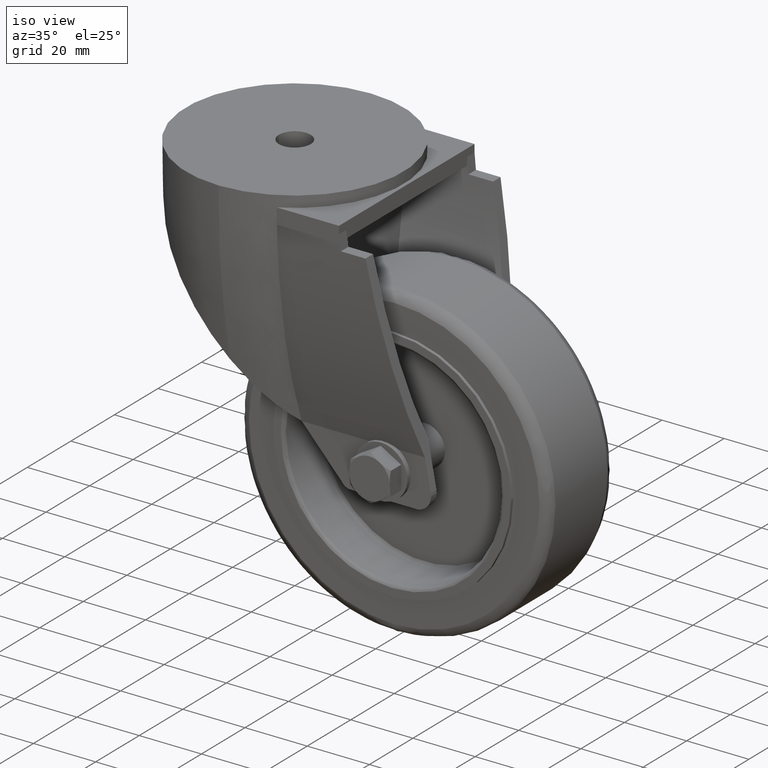
[diagram: clean part render]
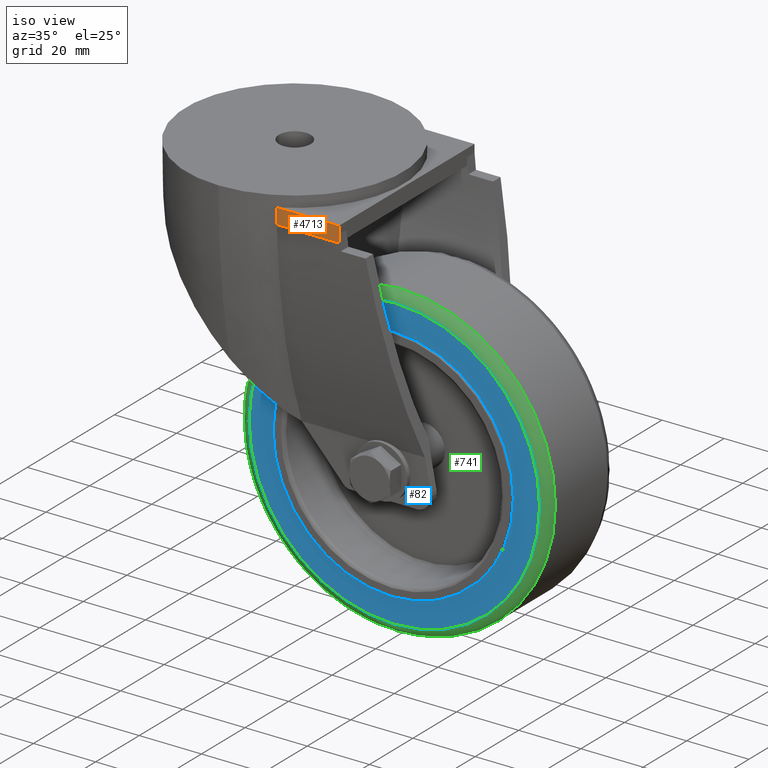
[diagram: same view with three faces highlighted in distinct colors, each labeled with its STEP entity id]
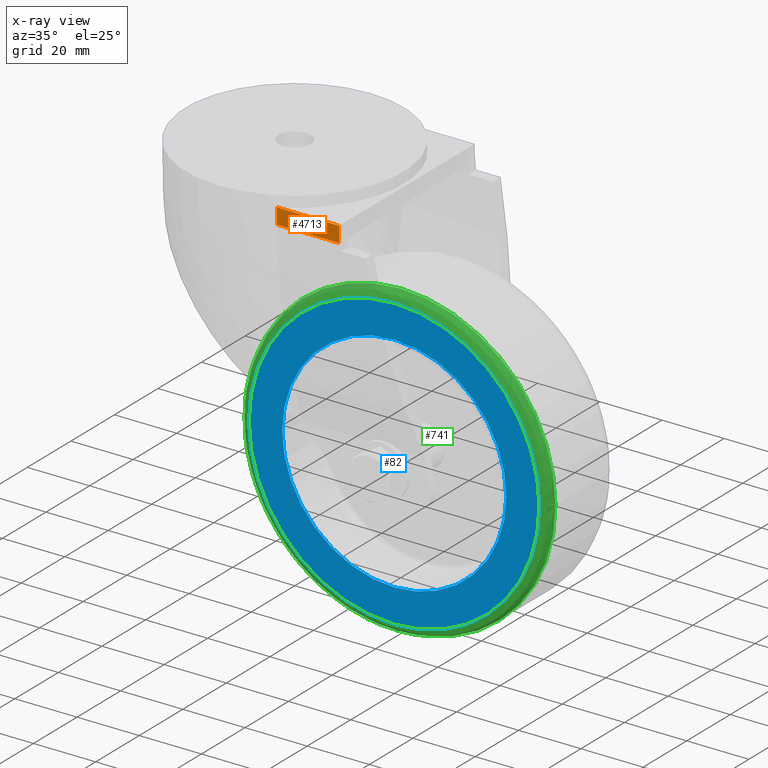
[diagram: x-ray of the same camera — body ghosted, the three highlighted faces saturated]
A machine part, iso view with three faces highlighted in distinct colors.
The next image is the same camera in x-ray (body ghosted, the three faces saturated) — at least one of them is partly hidden behind the body in this view.
Their STEP definitions:

[orange] entity #4713 — the highlighted planar face has unit normal (0, -1, 0).
#3352=CARTESIAN_POINT('',(15.998477758083510,-31.127938871916683,-9.075096515550406));
#3353=VERTEX_POINT('',#3352);
#3367=CARTESIAN_POINT('',(16.040846332414759,-31.127938871916626,-6.575096515550121));
#3368=VERTEX_POINT('',#3367);
#3369=CARTESIAN_POINT('',(16.040846332414759,-31.127938871916626,-6.575096515550121));
#3370=CARTESIAN_POINT('',(16.039372789405519,-31.127938871916626,-6.845565510957051));
#3371=CARTESIAN_POINT('',(16.031725893920054,-31.127938871916683,-7.679007092286219));
#3372=CARTESIAN_POINT('',(16.014500648517469,-31.127938871916626,-8.512332493921640));
#3373=CARTESIAN_POINT('',(15.998477758083510,-31.127938871916626,-9.075096515550406));
#3374=B_SPLINE_CURVE_WITH_KNOTS('',3,(#3369,#3370,#3371,#3372,#3373),.UNSPECIFIED.,.F.,.U.,(4,1,4),(0.0,0.811420776332713,2.500412914366193),.UNSPECIFIED.);
#3375=EDGE_CURVE('',#3368,#3353,#3374,.T.);
#3617=CARTESIAN_POINT('',(35.999990870986210,-31.127938871916626,-9.075096515550406));
#3618=VERTEX_POINT('',#3617);
#4509=CARTESIAN_POINT('',(15.998477758083482,-31.127938871916683,-11.575096515550122));
#4510=VERTEX_POINT('',#4509);
#4511=CARTESIAN_POINT('',(15.998477758083482,-31.127938871916683,-11.575096515550122));
#4512=DIRECTION('',(0.0,0.0,1.0));
#4513=VECTOR('',#4512,2.499999999999716);
#4514=LINE('',#4511,#4513);
#4515=EDGE_CURVE('',#4510,#3353,#4514,.T.);
#4551=CARTESIAN_POINT('',(35.999990870986210,-31.127938871916626,-6.575096515550121));
#4552=VERTEX_POINT('',#4551);
#4553=CARTESIAN_POINT('',(35.999990870986210,-31.127938871916626,-9.075096515550406));
#4554=DIRECTION('',(0.0,0.0,1.0));
#4555=VECTOR('',#4554,2.500000000000284);
#4556=LINE('',#4553,#4555);
#4557=EDGE_CURVE('',#3618,#4552,#4556,.T.);
#4591=CARTESIAN_POINT('',(35.999990870986210,-31.127938871916626,-11.575096515550122));
#4592=VERTEX_POINT('',#4591);
#4600=CARTESIAN_POINT('',(35.999990870986210,-31.127938871916626,-11.575096515550122));
#4601=DIRECTION('',(0.0,0.0,1.0));
#4602=VECTOR('',#4601,2.499999999999716);
#4603=LINE('',#4600,#4602);
#4604=EDGE_CURVE('',#4592,#3618,#4603,.T.);
#4640=CARTESIAN_POINT('',(15.998477758083482,-31.127938871916683,-11.575096515550122));
#4641=DIRECTION('',(1.0,0.0,0.0));
#4642=VECTOR('',#4641,20.001513112902728);
#4643=LINE('',#4640,#4642);
#4644=EDGE_CURVE('',#4510,#4592,#4643,.T.);
#4691=CARTESIAN_POINT('',(16.040846332414741,-31.127938871916683,-6.575096515550121));
#4692=DIRECTION('',(1.0,0.0,0.0));
#4693=VECTOR('',#4692,19.959144538571469);
#4694=LINE('',#4691,#4693);
#4695=EDGE_CURVE('',#3368,#4552,#4694,.T.);
#4700=CARTESIAN_POINT('',(15.998477758083482,-31.127938871916683,-11.575096515550122));
#4701=DIRECTION('',(0.0,-1.0,0.0));
#4702=DIRECTION('',(1.0,0.0,0.0));
#4703=AXIS2_PLACEMENT_3D('',#4700,#4701,#4702);
#4704=PLANE('',#4703);
#4705=ORIENTED_EDGE('',*,*,#4644,.T.);
#4706=ORIENTED_EDGE('',*,*,#4604,.T.);
#4707=ORIENTED_EDGE('',*,*,#4557,.T.);
#4708=ORIENTED_EDGE('',*,*,#4695,.F.);
#4709=ORIENTED_EDGE('',*,*,#3375,.T.);
#4710=ORIENTED_EDGE('',*,*,#4515,.F.);
#4711=EDGE_LOOP('',(#4705,#4706,#4707,#4708,#4709,#4710));
#4712=FACE_OUTER_BOUND('',#4711,.T.);
#4713=ADVANCED_FACE('',(#4712),#4704,.T.);

[blue] entity #82 — the highlighted planar face has unit normal (0, -1, 0).
#25=CARTESIAN_POINT('',(42.499989609830635,-14.999999999939973,-116.075077357231750));
#26=VERTEX_POINT('',#25);
#33=CARTESIAN_POINT('',(42.499989609830635,-14.999999999939972,-44.075077357231756));
#34=VERTEX_POINT('',#33);
#35=CARTESIAN_POINT('',(42.499989609830635,-14.999999999939973,-80.075077357231748));
#36=DIRECTION('',(-3.157968E-016,1.0,-6.123234E-017));
#37=DIRECTION('',(0.0,-6.123234E-017,-1.0));
#38=AXIS2_PLACEMENT_3D('',#35,#36,#37);
#39=CIRCLE('',#38,35.999999999999993);
#40=EDGE_CURVE('',#34,#26,#39,.T.);
#42=CARTESIAN_POINT('',(42.499989609830635,-14.999999999939973,-80.075077357231748));
#43=DIRECTION('',(-3.157968E-016,1.0,-6.123234E-017));
#44=DIRECTION('',(0.0,-6.123234E-017,-1.0));
#45=AXIS2_PLACEMENT_3D('',#42,#43,#44);
#46=CIRCLE('',#45,35.999999999999993);
#47=EDGE_CURVE('',#26,#34,#46,.T.);
#53=CARTESIAN_POINT('',(-17.140061405798505,-14.999999999939973,-20.435026341594842));
#54=DIRECTION('',(0.0,-1.0,0.0));
#55=DIRECTION('',(0.0,0.0,-1.0));
#56=AXIS2_PLACEMENT_3D('',#53,#54,#55);
#57=PLANE('',#56);
#58=CARTESIAN_POINT('',(42.499989609830635,-14.999999999939973,-126.775115933133120));
#59=VERTEX_POINT('',#58);
#60=CARTESIAN_POINT('',(42.499989609830635,-14.999999999939972,-33.375038781330367));
#61=VERTEX_POINT('',#60);
#62=CARTESIAN_POINT('',(42.499989609830635,-14.999999999939973,-80.075077357231748));
#63=DIRECTION('',(3.157968E-016,-1.0,6.123234E-017));
#64=DIRECTION('',(0.0,-6.123234E-017,-1.0));
#65=AXIS2_PLACEMENT_3D('',#62,#63,#64);
#66=CIRCLE('',#65,46.700038575901381);
#67=EDGE_CURVE('',#59,#61,#66,.T.);
#68=ORIENTED_EDGE('',*,*,#67,.T.);
#69=CARTESIAN_POINT('',(42.499989609830635,-14.999999999939973,-80.075077357231748));
#70=DIRECTION('',(3.157968E-016,-1.0,6.123234E-017));
#71=DIRECTION('',(0.0,-6.123234E-017,-1.0));
#72=AXIS2_PLACEMENT_3D('',#69,#70,#71);
#73=CIRCLE('',#72,46.700038575901381);
#74=EDGE_CURVE('',#61,#59,#73,.T.);
#75=ORIENTED_EDGE('',*,*,#74,.T.);
#76=EDGE_LOOP('',(#68,#75));
#77=FACE_OUTER_BOUND('',#76,.T.);
#78=ORIENTED_EDGE('',*,*,#47,.T.);
#79=ORIENTED_EDGE('',*,*,#40,.T.);
#80=EDGE_LOOP('',(#78,#79));
#81=FACE_BOUND('',#80,.T.);
#82=ADVANCED_FACE('',(#77,#81),#57,.T.);

[green] entity #741 — the highlighted face is a freeform B-spline surface patch.
#58=CARTESIAN_POINT('',(42.499989609830635,-14.999999999939973,-126.775115933133120));
#59=VERTEX_POINT('',#58);
#60=CARTESIAN_POINT('',(42.499989609830635,-14.999999999939972,-33.375038781330367));
#61=VERTEX_POINT('',#60);
#62=CARTESIAN_POINT('',(42.499989609830635,-14.999999999939973,-80.075077357231748));
#63=DIRECTION('',(3.157968E-016,-1.0,6.123234E-017));
#64=DIRECTION('',(0.0,-6.123234E-017,-1.0));
#65=AXIS2_PLACEMENT_3D('',#62,#63,#64);
#66=CIRCLE('',#65,46.700038575901381);
#67=EDGE_CURVE('',#59,#61,#66,.T.);
#69=CARTESIAN_POINT('',(42.499989609830635,-14.999999999939973,-80.075077357231748));
#70=DIRECTION('',(3.157968E-016,-1.0,6.123234E-017));
#71=DIRECTION('',(0.0,-6.123234E-017,-1.0));
#72=AXIS2_PLACEMENT_3D('',#69,#70,#71);
#73=CIRCLE('',#72,46.700038575901381);
#74=EDGE_CURVE('',#61,#59,#73,.T.);
#106=CARTESIAN_POINT('',(42.499989609830635,-11.999999999939973,-129.775115933133120));
#107=VERTEX_POINT('',#106);
#114=CARTESIAN_POINT('',(42.499989609830635,-11.999999999939970,-30.375038781330367));
#115=VERTEX_POINT('',#114);
#116=CARTESIAN_POINT('',(42.499989609830635,-11.999999999939973,-80.075077357231748));
#117=DIRECTION('',(3.157968E-016,-1.0,6.123234E-017));
#118=DIRECTION('',(0.0,-6.123234E-017,-1.0));
#119=AXIS2_PLACEMENT_3D('',#116,#117,#118);
#120=CIRCLE('',#119,49.700038575901381);
#121=EDGE_CURVE('',#115,#107,#120,.T.);
#123=CARTESIAN_POINT('',(42.499989609830635,-11.999999999939973,-80.075077357231748));
#124=DIRECTION('',(3.157968E-016,-1.0,6.123234E-017));
#125=DIRECTION('',(0.0,-6.123234E-017,-1.0));
#126=AXIS2_PLACEMENT_3D('',#123,#124,#125);
#127=CIRCLE('',#126,49.700038575901381);
#128=EDGE_CURVE('',#107,#115,#127,.T.);
#453=CARTESIAN_POINT('',(42.499989609830635,-11.999999999939977,-129.775115933133120));
#454=CARTESIAN_POINT('',(42.499989609830635,-12.390180643972233,-129.775115933133120));
#455=CARTESIAN_POINT('',(42.499989609830628,-13.179083451969806,-129.618999604785810));
#456=CARTESIAN_POINT('',(42.499989609830642,-14.176238734358815,-128.951354667551950));
#457=CARTESIAN_POINT('',(42.499989609830628,-14.843883671592637,-127.954199385162950));
#458=CARTESIAN_POINT('',(42.499989609830635,-14.999999999939977,-127.165296577165380));
#459=CARTESIAN_POINT('',(42.499989609830635,-14.999999999939977,-126.775115933133120));
#460=CARTESIAN_POINT('',(45.747626713483101,-11.999999999939975,-129.775115933133120));
#461=CARTESIAN_POINT('',(45.747626713483101,-12.390180643972231,-129.775115933133120));
#462=CARTESIAN_POINT('',(45.737425329440860,-13.179083451969804,-129.618999604785840));
#463=CARTESIAN_POINT('',(45.693798231105426,-14.176238734358813,-128.951354667551950));
#464=CARTESIAN_POINT('',(45.628639358275883,-14.843883671592636,-127.954199385162950));
#465=CARTESIAN_POINT('',(45.577088693450641,-14.999999999939975,-127.165296577165380));
#466=CARTESIAN_POINT('',(45.551592432823981,-14.999999999939975,-126.775115933133120));
#467=CARTESIAN_POINT('',(52.259826415908400,-11.999999999939973,-129.134991146755060));
#468=CARTESIAN_POINT('',(52.259826415908400,-12.390180643972226,-129.134991146755060));
#469=CARTESIAN_POINT('',(52.229169097904361,-13.179083451969788,-128.980885559932230));
#470=CARTESIAN_POINT('',(52.098060434440157,-14.176238734358801,-128.321839732177410));
#471=CARTESIAN_POINT('',(51.902244231771164,-14.843883671592629,-127.337527574872720));
#472=CARTESIAN_POINT('',(51.747323574111036,-14.999999999939970,-126.558785649158350));
#473=CARTESIAN_POINT('',(51.670701915058828,-14.999999999939975,-126.173630439885630));
#474=CARTESIAN_POINT('',(60.082761094800418,-11.999999999939964,-126.760024867695220));
#475=CARTESIAN_POINT('',(60.082761094800418,-12.390180643972222,-126.760024867695220));
#476=CARTESIAN_POINT('',(60.027530599914321,-13.179083451969797,-126.613379456479110));
#477=CARTESIAN_POINT('',(59.791332627018413,-14.176238734358813,-125.986237712860730));
#478=CARTESIAN_POINT('',(59.438561201328206,-14.843883671592636,-125.049575622608670));
#479=CARTESIAN_POINT('',(59.159464882807498,-14.999999999939968,-124.308532210218220));
#480=CARTESIAN_POINT('',(59.021427623713599,-14.999999999939963,-123.942022175051420));
#481=CARTESIAN_POINT('',(65.965853382629206,-11.999999999939970,-123.977099329290790));
#482=CARTESIAN_POINT('',(65.965853382629206,-12.390180643972224,-123.977099329290790));
#483=CARTESIAN_POINT('',(65.892143087855231,-13.179083451969801,-123.839195563545500));
#484=CARTESIAN_POINT('',(65.576914657563307,-14.176238734358803,-123.249438220415730));
#485=CARTESIAN_POINT('',(65.106107980398875,-14.843883671592637,-122.368611275983000));
#486=CARTESIAN_POINT('',(64.733627669459480,-14.999999999939970,-121.671742029943400));
#487=CARTESIAN_POINT('',(64.549403952496775,-14.999999999939973,-121.327079939164220));
#488=CARTESIAN_POINT('',(70.156265007863624,-11.999999999939966,-121.465640681328580));
#489=CARTESIAN_POINT('',(70.156265007863624,-12.390180643972224,-121.465640681328580));
#490=CARTESIAN_POINT('',(70.069391912899903,-13.179083451969790,-121.335625837084180));
#491=CARTESIAN_POINT('',(69.697871632809182,-14.176238734358812,-120.779606146870360));
#492=CARTESIAN_POINT('',(69.142990753547096,-14.843883671592627,-119.949167780174750));
#493=CARTESIAN_POINT('',(68.703994850416336,-14.999999999939964,-119.292163629541860));
#494=CARTESIAN_POINT('',(68.486873422434769,-14.999999999939964,-118.967218275022900));
#495=CARTESIAN_POINT('',(74.080196321080550,-11.999999999939966,-118.555232925542880));
#496=CARTESIAN_POINT('',(74.080196321080550,-12.390180643972220,-118.555232925542880));
#497=CARTESIAN_POINT('',(73.980997486200778,-13.179083451969790,-118.434360170235410));
#498=CARTESIAN_POINT('',(73.556765116735619,-14.176238734358805,-117.917437411515240));
#499=CARTESIAN_POINT('',(72.923156555386740,-14.843883671592629,-117.145391926409730));
#500=CARTESIAN_POINT('',(72.421874977635042,-14.999999999939970,-116.534585503520090));
#501=CARTESIAN_POINT('',(72.173947898575548,-14.999999999939970,-116.232488919446500));
#502=CARTESIAN_POINT('',(78.902510515932264,-11.999999999939963,-114.185273008425270));
#503=CARTESIAN_POINT('',(78.902510515932264,-12.390180643972220,-114.185273008425270));
#504=CARTESIAN_POINT('',(78.788163966728462,-13.179083451969785,-114.078127045225530));
#505=CARTESIAN_POINT('',(78.299151091046539,-14.176238734358794,-113.619908096365170));
#506=CARTESIAN_POINT('',(77.568790168723339,-14.843883671592620,-112.935539175303550));
#507=CARTESIAN_POINT('',(76.990962630075515,-14.999999999939961,-112.394098365565000));
#508=CARTESIAN_POINT('',(76.705176955485953,-14.999999999939961,-112.126309074276560));
#509=CARTESIAN_POINT('',(84.091389668849402,-11.999999999939963,-107.864177520596770));
#510=CARTESIAN_POINT('',(84.091389668849402,-12.390180643972213,-107.864177520596770));
#511=CARTESIAN_POINT('',(83.960743962043281,-13.179083451969788,-107.776887200309550));
#512=CARTESIAN_POINT('',(83.402026333696540,-14.176238734358790,-107.403582620152700));
#513=CARTESIAN_POINT('',(82.567558484995175,-14.843883671592618,-106.846036815064020));
#514=CARTESIAN_POINT('',(81.907366395908596,-14.999999999939959,-106.404932546762080));
#515=CARTESIAN_POINT('',(81.580844330207441,-14.999999999939963,-106.186768349922260));
#516=CARTESIAN_POINT('',(88.712573632369725,-11.999999999939952,-99.217263162531026));
#517=CARTESIAN_POINT('',(88.712573632369725,-12.390180643972213,-99.217263162531026));
#518=CARTESIAN_POINT('',(88.567411995723830,-13.179083451969785,-99.157134280339037));
#519=CARTESIAN_POINT('',(87.946615741974000,-14.176238734358805,-98.899987931831106));
#520=CARTESIAN_POINT('',(87.019430902860705,-14.843883671592629,-98.515929242156744));
#521=CARTESIAN_POINT('',(86.285885450083484,-14.999999999939957,-98.212079897855915));
#522=CARTESIAN_POINT('',(85.923083804189929,-14.999999999939957,-98.061800127463187));
#523=CARTESIAN_POINT('',(91.559343892435606,-11.999999999939964,-89.833522078089459));
#524=CARTESIAN_POINT('',(91.559343892435606,-12.390180643972217,-89.833522078089459));
#525=CARTESIAN_POINT('',(91.405240063119749,-13.179083451969788,-89.802869132863393));
#526=CARTESIAN_POINT('',(90.746201751495136,-14.176238734358799,-89.671779169961127));
#527=CARTESIAN_POINT('',(89.761900819841259,-14.843883671592620,-89.475990897353540));
#528=CARTESIAN_POINT('',(88.983167775338927,-14.999999999939963,-89.321092336656946));
#529=CARTESIAN_POINT('',(88.598016958593405,-14.999999999939963,-89.244481606463580));
#530=CARTESIAN_POINT('',(92.520386081172504,-11.999999999939952,-80.075091848421238));
#531=CARTESIAN_POINT('',(92.520386081172504,-12.390180643972210,-80.075091848421238));
#532=CARTESIAN_POINT('',(92.363263453839778,-13.179083451969779,-80.075091802901909));
#533=CARTESIAN_POINT('',(91.691314992240152,-14.176238734358796,-80.075091608234686));
#534=CARTESIAN_POINT('',(90.687732218508089,-14.843883671592620,-80.075091317491086));
#535=CARTESIAN_POINT('',(89.893744278777874,-14.999999999939952,-80.075091087468337));
#536=CARTESIAN_POINT('',(89.501048597463011,-14.999999999939952,-80.075090973702217));
#537=CARTESIAN_POINT('',(91.559280897266348,-11.999999999939961,-70.316574671616124));
#538=CARTESIAN_POINT('',(91.559280897266348,-12.390180643972215,-70.316574671616124));
#539=CARTESIAN_POINT('',(91.405177265829096,-13.179083451969786,-70.347227798919391));
#540=CARTESIAN_POINT('',(90.746139800449413,-14.176238734358805,-70.478318540490633));
#541=CARTESIAN_POINT('',(89.761840132697273,-14.843883671592623,-70.674107976072463));
#542=CARTESIAN_POINT('',(88.983108088135140,-14.999999999939963,-70.829007456860126));
#543=CARTESIAN_POINT('',(88.597957765946489,-14.999999999939963,-70.905618642118014));
#544=CARTESIAN_POINT('',(88.712825613046817,-11.999999999939957,-60.933094428585335));
#545=CARTESIAN_POINT('',(88.712825613046817,-12.390180643972215,-60.933094428585335));
#546=CARTESIAN_POINT('',(88.567663184886499,-13.179083451969786,-60.993222673507013));
#547=CARTESIAN_POINT('',(87.946863546156919,-14.176238734358792,-61.250366296673626));
#548=CARTESIAN_POINT('',(87.019673651436676,-14.843883671592627,-61.634420915938129));
#549=CARTESIAN_POINT('',(86.286124198898676,-14.999999999939959,-61.938267039920269));
#550=CARTESIAN_POINT('',(85.923320574777634,-14.999999999939959,-62.088545217587018));
#551=CARTESIAN_POINT('',(84.090444741310307,-11.999999999939957,-52.285223652013165));
#552=CARTESIAN_POINT('',(84.090444741310307,-12.390180643972215,-52.285223652013165));
#553=CARTESIAN_POINT('',(83.959802002683318,-13.179083451969785,-52.372516339304369));
#554=CARTESIAN_POINT('',(83.401097068010642,-14.176238734358801,-52.745831042157633));
#555=CARTESIAN_POINT('',(82.566648177835461,-14.843883671592618,-53.303391965911402));
#556=CARTESIAN_POINT('',(81.906471087851713,-14.999999999939956,-53.744508195396961));
#557=CARTESIAN_POINT('',(81.579956440503679,-14.999999999939956,-53.962678308076150));
#558=CARTESIAN_POINT('',(77.869763917453383,-11.999999999939963,-44.705303030572004));
#559=CARTESIAN_POINT('',(77.869763917453383,-12.390180643972217,-44.705303030572004));
#560=CARTESIAN_POINT('',(77.758661402091178,-13.179083451969783,-44.816405545993987));
#561=CARTESIAN_POINT('',(77.283521916806450,-14.176238734358789,-45.291545031534476));
#562=CARTESIAN_POINT('',(76.573881475906418,-14.843883671592620,-46.001185472816502));
#563=CARTESIAN_POINT('',(76.012447016918784,-14.999999999939959,-46.562619932106280));
#564=CARTESIAN_POINT('',(75.734769137503307,-14.999999999939963,-46.840297811671221));
#565=CARTESIAN_POINT('',(70.289843061377184,-11.999999999939961,-38.484622555572159));
#566=CARTESIAN_POINT('',(70.289843061377184,-12.390180643972220,-38.484622555572159));
#567=CARTESIAN_POINT('',(70.202550374882776,-13.179083451969790,-38.615265293163091));
#568=CARTESIAN_POINT('',(69.829235675437232,-14.176238734358810,-39.173970223405234));
#569=CARTESIAN_POINT('',(69.271674756772981,-14.843883671592629,-40.008419106962954));
#570=CARTESIAN_POINT('',(68.830558531314054,-14.999999999939963,-40.668596191711416));
#571=CARTESIAN_POINT('',(68.612388420626360,-14.999999999939963,-40.995110836470154));
#572=CARTESIAN_POINT('',(61.641973572202190,-11.999999999939964,-33.862240053772283));
#573=CARTESIAN_POINT('',(61.641973572202190,-12.390180643972219,-33.862240053772283));
#574=CARTESIAN_POINT('',(61.581845324033409,-13.179083451969783,-34.007402486016886));
#575=CARTESIAN_POINT('',(61.324701686980312,-14.176238734358799,-34.628202142213226));
#576=CARTESIAN_POINT('',(60.940647046975677,-14.843883671592621,-35.555392063020918));
#577=CARTESIAN_POINT('',(60.636800906584895,-14.999999999939959,-36.288941536198024));
#578=CARTESIAN_POINT('',(60.486522720802675,-14.999999999939959,-36.651745170526880));
#579=CARTESIAN_POINT('',(52.258488414217680,-11.999999999939970,-31.015790940949095));
#580=CARTESIAN_POINT('',(52.258488414217680,-12.390180643972226,-31.015790940949095));
#581=CARTESIAN_POINT('',(52.227835299105998,-13.179083451969799,-31.169894557085183));
#582=CARTESIAN_POINT('',(52.096744609673188,-14.176238734358808,-31.828931957028352));
#583=CARTESIAN_POINT('',(51.900955251962301,-14.843883671592636,-32.813231527048202));
#584=CARTESIAN_POINT('',(51.746055832782488,-14.999999999939973,-33.591963494289161));
#585=CARTESIAN_POINT('',(51.669444677994967,-14.999999999939973,-33.977113778235818));
#586=CARTESIAN_POINT('',(42.499989609830607,-11.999999999939966,-30.054662701521003));
#587=CARTESIAN_POINT('',(42.499989609830607,-12.390180643972222,-30.054662701521003));
#588=CARTESIAN_POINT('',(42.499989609830592,-13.179083451969788,-30.211785385973961));
#589=CARTESIAN_POINT('',(42.499989609830621,-14.176238734358805,-30.883734091853107));
#590=CARTESIAN_POINT('',(42.499989609830607,-14.843883671592630,-31.887317230426710));
#591=CARTESIAN_POINT('',(42.499989609830607,-14.999999999939963,-32.681305458802584));
#592=CARTESIAN_POINT('',(42.499989609830614,-14.999999999939963,-33.074001282877639));
#593=CARTESIAN_POINT('',(32.741490805443661,-11.999999999939972,-31.015790940949085));
#594=CARTESIAN_POINT('',(32.741490805443661,-12.390180643972229,-31.015790940949085));
#595=CARTESIAN_POINT('',(32.772143920555344,-13.179083451969799,-31.169894557085172));
#596=CARTESIAN_POINT('',(32.903234609988154,-14.176238734358815,-31.828931957028338));
#597=CARTESIAN_POINT('',(33.099023967699026,-14.843883671592636,-32.813231527048188));
#598=CARTESIAN_POINT('',(33.253923386878839,-14.999999999939975,-33.591963494289153));
#599=CARTESIAN_POINT('',(33.330534541666353,-14.999999999939975,-33.977113778235811));
#600=CARTESIAN_POINT('',(23.358005647459049,-11.999999999939982,-33.862240053772297));
#601=CARTESIAN_POINT('',(23.358005647459049,-12.390180643972236,-33.862240053772297));
#602=CARTESIAN_POINT('',(23.418133895627811,-13.179083451969809,-34.007402486016900));
#603=CARTESIAN_POINT('',(23.675277532680944,-14.176238734358817,-34.628202142213247));
#604=CARTESIAN_POINT('',(24.059332172685597,-14.843883671592639,-35.555392063020932));
#605=CARTESIAN_POINT('',(24.363178313076354,-14.999999999939980,-36.288941536198038));
#606=CARTESIAN_POINT('',(24.513456498858574,-14.999999999939980,-36.651745170526894));
#607=CARTESIAN_POINT('',(14.710136158284115,-11.999999999939979,-38.484622555572145));
#608=CARTESIAN_POINT('',(14.710136158284115,-12.390180643972236,-38.484622555572145));
#609=CARTESIAN_POINT('',(14.797428844778512,-13.179083451969808,-38.615265293163077));
#610=CARTESIAN_POINT('',(15.170743544224083,-14.176238734358822,-39.173970223405234));
#611=CARTESIAN_POINT('',(15.728304462888278,-14.843883671592639,-40.008419106962940));
#612=CARTESIAN_POINT('',(16.169420688347238,-14.999999999939980,-40.668596191711401));
#613=CARTESIAN_POINT('',(16.387590799034921,-14.999999999939980,-40.995110836470147));
#614=CARTESIAN_POINT('',(7.130215302207881,-11.999999999939984,-44.705303030571969));
#615=CARTESIAN_POINT('',(7.130215302207881,-12.390180643972240,-44.705303030571969));
#616=CARTESIAN_POINT('',(7.241317817570065,-13.179083451969809,-44.816405545993945));
#617=CARTESIAN_POINT('',(7.716457302854826,-14.176238734358821,-45.291545031534469));
#618=CARTESIAN_POINT('',(8.426097743754911,-14.843883671592639,-46.001185472816459));
#619=CARTESIAN_POINT('',(8.987532202742500,-14.999999999939984,-46.562619932106259));
#620=CARTESIAN_POINT('',(9.265210082157978,-14.999999999939984,-46.840297811671199));
#621=CARTESIAN_POINT('',(0.909534478350997,-11.999999999939982,-52.285223652013144));
#622=CARTESIAN_POINT('',(0.909534478350997,-12.390180643972236,-52.285223652013144));
#623=CARTESIAN_POINT('',(1.040177216977954,-13.179083451969806,-52.372516339304369));
#624=CARTESIAN_POINT('',(1.598882151650716,-14.176238734358821,-52.745831042157626));
#625=CARTESIAN_POINT('',(2.433331041825769,-14.843883671592648,-53.303391965911374));
#626=CARTESIAN_POINT('',(3.093508131809568,-14.999999999939982,-53.744508195396946));
#627=CARTESIAN_POINT('',(3.420022779157628,-14.999999999939982,-53.962678308076136));
#628=CARTESIAN_POINT('',(-3.712846393385577,-11.999999999939989,-60.933094428585377));
#629=CARTESIAN_POINT('',(-3.712846393385577,-12.390180643972244,-60.933094428585377));
#630=CARTESIAN_POINT('',(-3.567683965225245,-13.179083451969815,-60.993222673507020));
#631=CARTESIAN_POINT('',(-2.946884326495704,-14.176238734358831,-61.250366296673626));
#632=CARTESIAN_POINT('',(-2.019694431775410,-14.843883671592643,-61.634420915938193));
#633=CARTESIAN_POINT('',(-1.286144979237442,-14.999999999939984,-61.938267039920305));
#634=CARTESIAN_POINT('',(-0.923341355116415,-14.999999999939984,-62.088545217587054));
#635=CARTESIAN_POINT('',(-6.559301677605019,-11.999999999939984,-70.316574671615967));
#636=CARTESIAN_POINT('',(-6.559301677605019,-12.390180643972244,-70.316574671615967));
#637=CARTESIAN_POINT('',(-6.405198046167786,-13.179083451969808,-70.347227798919278));
#638=CARTESIAN_POINT('',(-5.746160580788084,-14.176238734358819,-70.478318540490505));
#639=CARTESIAN_POINT('',(-4.761860913035950,-14.843883671592653,-70.674107976072278));
#640=CARTESIAN_POINT('',(-3.983128868473814,-14.999999999939988,-70.829007456859983));
#641=CARTESIAN_POINT('',(-3.597978546285144,-14.999999999939988,-70.905618642117886));
#642=CARTESIAN_POINT('',(-7.520406861511280,-11.999999999939989,-80.075091848421252));
#643=CARTESIAN_POINT('',(-7.520406861511280,-12.390180643972244,-80.075091848421252));
#644=CARTESIAN_POINT('',(-7.363284234178537,-13.179083451969815,-80.075091802901923));
#645=CARTESIAN_POINT('',(-6.691335772578904,-14.176238734358835,-80.075091608234715));
#646=CARTESIAN_POINT('',(-5.687752998846873,-14.843883671592643,-80.075091317491200));
#647=CARTESIAN_POINT('',(-4.893765059116639,-14.999999999939984,-80.075091087468365));
#648=CARTESIAN_POINT('',(-4.501069377801808,-14.999999999939984,-80.075090973702260));
#649=CARTESIAN_POINT('',(-6.559364672774326,-11.999999999939988,-89.833522078089445));
#650=CARTESIAN_POINT('',(-6.559364672774326,-12.390180643972242,-89.833522078089445));
#651=CARTESIAN_POINT('',(-6.405260843458483,-13.179083451969813,-89.802869132863378));
#652=CARTESIAN_POINT('',(-5.746222531833847,-14.176238734358822,-89.671779169961113));
#653=CARTESIAN_POINT('',(-4.761921600179960,-14.843883671592650,-89.475990897353483));
#654=CARTESIAN_POINT('',(-3.983188555677636,-14.999999999939984,-89.321092336656903));
#655=CARTESIAN_POINT('',(-3.598037738932093,-14.999999999939984,-89.244481606463552));
#656=CARTESIAN_POINT('',(-3.712594412708429,-11.999999999939989,-99.217263162531040));
#657=CARTESIAN_POINT('',(-3.712594412708429,-12.390180643972245,-99.217263162531040));
#658=CARTESIAN_POINT('',(-3.567432776062537,-13.179083451969815,-99.157134280339065));
#659=CARTESIAN_POINT('',(-2.946636522312732,-14.176238734358824,-98.899987931831134));
#660=CARTESIAN_POINT('',(-2.019451683199444,-14.843883671592648,-98.515929242156787));
#661=CARTESIAN_POINT('',(-1.285906230422232,-14.999999999939988,-98.212079897855986));
#662=CARTESIAN_POINT('',(-0.923104584528699,-14.999999999939988,-98.061800127463258));
#663=CARTESIAN_POINT('',(0.908589550811786,-11.999999999939991,-107.864177520596750));
#664=CARTESIAN_POINT('',(0.908589550811786,-12.390180643972244,-107.864177520596750));
#665=CARTESIAN_POINT('',(1.039235257617890,-13.179083451969822,-107.776887200309490));
#666=CARTESIAN_POINT('',(1.597952885964656,-14.176238734358833,-107.403582620152680));
#667=CARTESIAN_POINT('',(2.432420734665987,-14.843883671592659,-106.846036815063980));
#668=CARTESIAN_POINT('',(3.092612823752613,-14.999999999939991,-106.404932546762010));
#669=CARTESIAN_POINT('',(3.419134889453784,-14.999999999939991,-106.186768349922200));
#670=CARTESIAN_POINT('',(6.097468703729041,-11.999999999939982,-114.185273008425280));
#671=CARTESIAN_POINT('',(6.097468703729041,-12.390180643972244,-114.185273008425280));
#672=CARTESIAN_POINT('',(6.211815252932796,-13.179083451969811,-114.078127045225600));
#673=CARTESIAN_POINT('',(6.700828128614780,-14.176238734358826,-113.619908096365220));
#674=CARTESIAN_POINT('',(7.431189050938026,-14.843883671592646,-112.935539175303560));
#675=CARTESIAN_POINT('',(8.009016589585816,-14.999999999939982,-112.394098365565040));
#676=CARTESIAN_POINT('',(8.294802264175360,-14.999999999939982,-112.126309074276590));
#677=CARTESIAN_POINT('',(10.919782898580698,-11.999999999939986,-118.555232925542840));
#678=CARTESIAN_POINT('',(10.919782898580698,-12.390180643972244,-118.555232925542840));
#679=CARTESIAN_POINT('',(11.018981733460491,-13.179083451969811,-118.434360170235290));
#680=CARTESIAN_POINT('',(11.443214102925632,-14.176238734358826,-117.917437411515180));
#681=CARTESIAN_POINT('',(12.076822664274495,-14.843883671592648,-117.145391926409700));
#682=CARTESIAN_POINT('',(12.578104242026214,-14.999999999939988,-116.534585503520050));
#683=CARTESIAN_POINT('',(12.826031321085704,-14.999999999939988,-116.232488919446450));
#684=CARTESIAN_POINT('',(14.843714211797607,-11.999999999939982,-121.465640681328570));
#685=CARTESIAN_POINT('',(14.843714211797607,-12.390180643972236,-121.465640681328570));
#686=CARTESIAN_POINT('',(14.930587306761307,-13.179083451969809,-121.335625837084180));
#687=CARTESIAN_POINT('',(15.302107586852067,-14.176238734358810,-120.779606146870380));
#688=CARTESIAN_POINT('',(15.856988466114128,-14.843883671592645,-119.949167780174720));
#689=CARTESIAN_POINT('',(16.295984369244902,-14.999999999939984,-119.292163629541850));
#690=CARTESIAN_POINT('',(16.513105797226459,-14.999999999939984,-118.967218275022900));
#691=CARTESIAN_POINT('',(19.034125837032100,-11.999999999939984,-123.977099329290780));
#692=CARTESIAN_POINT('',(19.034125837032100,-12.390180643972240,-123.977099329290780));
#693=CARTESIAN_POINT('',(19.107836131806089,-13.179083451969804,-123.839195563545470));
#694=CARTESIAN_POINT('',(19.423064562097977,-14.176238734358831,-123.249438220415670));
#695=CARTESIAN_POINT('',(19.893871239262459,-14.843883671592643,-122.368611275983000));
#696=CARTESIAN_POINT('',(20.266351550201804,-14.999999999939980,-121.671742029943400));
#697=CARTESIAN_POINT('',(20.450575267164531,-14.999999999939980,-121.327079939164180));
#698=CARTESIAN_POINT('',(24.917218124860756,-11.999999999939982,-126.760024867695250));
#699=CARTESIAN_POINT('',(24.917218124860756,-12.390180643972236,-126.760024867695250));
#700=CARTESIAN_POINT('',(24.972448619746814,-13.179083451969806,-126.613379456479080));
#701=CARTESIAN_POINT('',(25.208646592642793,-14.176238734358810,-125.986237712860810));
#702=CARTESIAN_POINT('',(25.561418018332944,-14.843883671592643,-125.049575622608730));
#703=CARTESIAN_POINT('',(25.840514336853687,-14.999999999939982,-124.308532210218260));
#704=CARTESIAN_POINT('',(25.978551595947575,-14.999999999939982,-123.942022175051480));
#705=CARTESIAN_POINT('',(32.740152803752864,-11.999999999939975,-129.134991146755030));
#706=CARTESIAN_POINT('',(32.740152803752864,-12.390180643972236,-129.134991146755030));
#707=CARTESIAN_POINT('',(32.770810121756881,-13.179083451969802,-128.980885559932090));
#708=CARTESIAN_POINT('',(32.901918785221106,-14.176238734358822,-128.321839732177440));
#709=CARTESIAN_POINT('',(33.097734987890092,-14.843883671592637,-127.337527574872610));
#710=CARTESIAN_POINT('',(33.252655645550227,-14.999999999939977,-126.558785649158300));
#711=CARTESIAN_POINT('',(33.329277304602435,-14.999999999939977,-126.173630439885570));
#712=CARTESIAN_POINT('',(39.252352506178156,-11.999999999939979,-129.775115933133120));
#713=CARTESIAN_POINT('',(39.252352506178156,-12.390180643972235,-129.775115933133120));
#714=CARTESIAN_POINT('',(39.262553890220381,-13.179083451969808,-129.618999604785780));
#715=CARTESIAN_POINT('',(39.306180988555838,-14.176238734358817,-128.951354667551950));
#716=CARTESIAN_POINT('',(39.371339861385358,-14.843883671592639,-127.954199385162950));
#717=CARTESIAN_POINT('',(39.422890526210615,-14.999999999939979,-127.165296577165380));
#718=CARTESIAN_POINT('',(39.448386786837276,-14.999999999939979,-126.775115933133120));
#719=CARTESIAN_POINT('',(42.499989609830621,-11.999999999939977,-129.775115933133120));
#720=CARTESIAN_POINT('',(42.499989609830621,-12.390180643972233,-129.775115933133120));
#721=CARTESIAN_POINT('',(42.499989609830621,-13.179083451969806,-129.618999604785810));
#722=CARTESIAN_POINT('',(42.499989609830614,-14.176238734358815,-128.951354667551950));
#723=CARTESIAN_POINT('',(42.499989609830621,-14.843883671592637,-127.954199385162950));
#724=CARTESIAN_POINT('',(42.499989609830621,-14.999999999939977,-127.165296577165380));
#725=CARTESIAN_POINT('',(42.499989609830621,-14.999999999939977,-126.775115933133120));
#726=B_SPLINE_SURFACE_WITH_KNOTS('',3,3,((#453,#460,#467,#474,#481,#488,#495,#502,#509,#516,#523,#530,#537,#544,#551,#558,#565,#572,#579,#586,#593,#600,#607,#614,#621,#628,#635,#642,#649,#656,#663,#670,#677,#684,#691,#698,#705,#712,#719),(#454,#461,#468,#475,#482,#489,#496,#503,#510,#517,#524,#531,#538,#545,#552,#559,#566,#573,#580,#587,#594,#601,#608,#615,#622,#629,#636,#643,#650,#657,#664,#671,#678,#685,#692,#699,#706,#713,#720),(#455,#462,#469,#476,#483,#490,#497,#504,#511,#518,#525,#532,#539,#546,#553,#560,#567,#574,#581,#588,#595,#602,#609,#616,#623,#630,#637,#644,#651,#658,#665,#672,#679,#686,#693,#700,#707,#714,#721),(#456,#463,#470,#477,#484,#491,#498,#505,#512,#519,#526,#533,#540,#547,#554,#561,#568,#575,#582,#589,#596,#603,#610,#617,#624,#631,#638,#645,#652,#659,#666,#673,#680,#687,#694,#701,#708,#715,#722),(#457,#464,#471,#478,#485,#492,#499,#506,#513,#520,#527,#534,#541,#548,#555,#562,#569,#576,#583,#590,#597,#604,#611,#618,#625,#632,#639,#646,#653,#660,#667,#674,#681,#688,#695,#702,#709,#716,#723),(#458,#465,#472,#479,#486,#493,#500,#507,#514,#521,#528,#535,#542,#549,#556,#563,#570,#577,#584,#591,#598,#605,#612,#619,#626,#633,#640,#647,#654,#661,#668,#675,#682,#689,#696,#703,#710,#717,#724),(#459,#466,#473,#480,#487,#494,#501,#508,#515,#522,#529,#536,#543,#550,#557,#564,#571,#578,#585,#592,#599,#606,#613,#620,#627,#634,#641,#648,#655,#662,#669,#676,#683,#690,#697,#704,#711,#718,#725)),.UNSPECIFIED.,.F.,.T.,.U.,(4,1,1,1,4),(4,1,1,1,1,1,1,1,1,1,1,1,1,1,1,1,1,1,1,1,1,1,1,1,1,1,1,1,1,1,1,1,1,1,1,1,4),(0.0,1.170541932096769,2.341083864193542,3.511625796290309,4.682167728387078),(0.0,9.509278017468196,19.018556034936392,23.778929121533018,28.539302208129648,33.299675294726271,38.060048381322893,47.569326398791091,57.078604416259296,66.587882433727486,76.097160451195691,85.606438468663882,95.115716486132072,104.624994503600260,114.134272521068480,123.643550538536690,133.152828556004860,142.662106573473070,152.171384590941270,161.680662608409510,171.189940625877680,180.699218643345890,190.208496660814090,199.717774678282300,209.227052695750440,218.736330713218710,228.245608730686850,237.754886748155060,247.264164765623260,256.773442783091470,266.282720800559620,271.043093887156260,275.803466973752900,280.563840060349490,285.324213146946140,294.833491164414340,304.342769181882550),.UNSPECIFIED.);
#727=CARTESIAN_POINT('',(42.499989609830635,-11.999999999939973,-126.775115933133120));
#728=DIRECTION('',(-1.0,0.0,0.0));
#729=DIRECTION('',(0.0,-6.123234E-017,-1.0));
#730=AXIS2_PLACEMENT_3D('',#727,#728,#729);
#731=CIRCLE('',#730,3.0);
#732=EDGE_CURVE('',#107,#59,#731,.T.);
#733=ORIENTED_EDGE('',*,*,#732,.T.);
#734=ORIENTED_EDGE('',*,*,#74,.F.);
#735=ORIENTED_EDGE('',*,*,#67,.F.);
#736=ORIENTED_EDGE('',*,*,#732,.F.);
#737=ORIENTED_EDGE('',*,*,#128,.T.);
#738=ORIENTED_EDGE('',*,*,#121,.T.);
#739=EDGE_LOOP('',(#733,#734,#735,#736,#737,#738));
#740=FACE_OUTER_BOUND('',#739,.T.);
#741=ADVANCED_FACE('',(#740),#726,.F.);